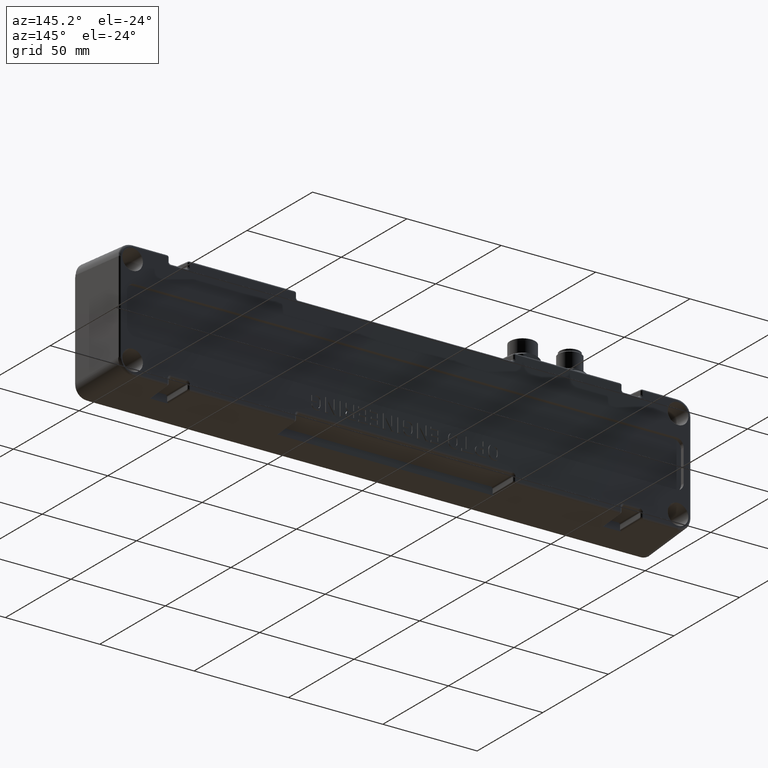
[diagram: clean part render]
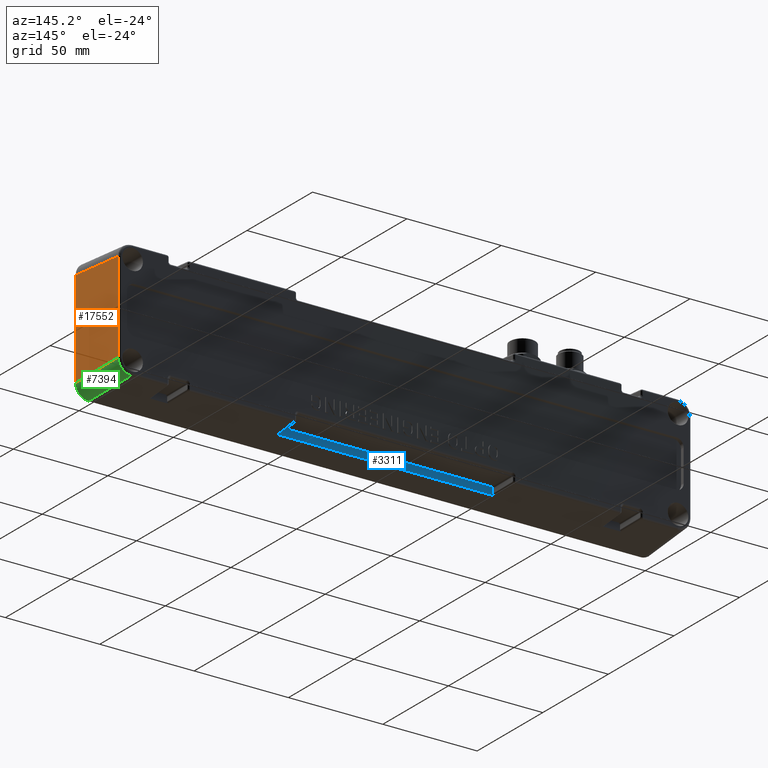
[diagram: same view with three faces highlighted in distinct colors, each labeled with its STEP entity id]
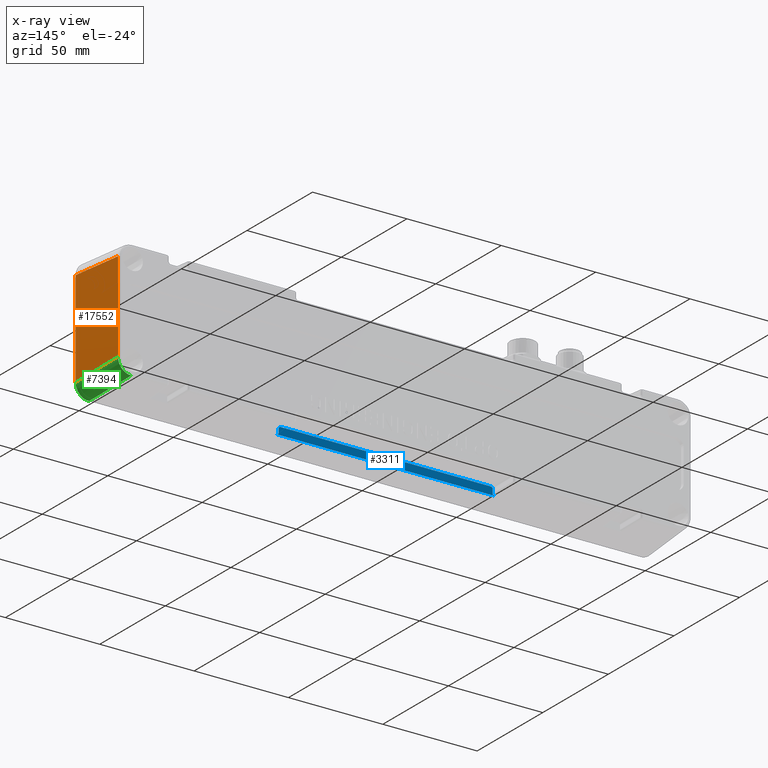
[diagram: x-ray of the same camera — body ghosted, the three highlighted faces saturated]
A machine part, auxiliary view with three faces highlighted in distinct colors.
The next image is the same camera in x-ray (body ghosted, the three faces saturated) — at least one of them is partly hidden behind the body in this view.
Their STEP definitions:

[orange] entity #17552 — the highlighted planar face has unit normal (0.9986, 0.0523, 0).
#685 = CARTESIAN_POINT ( 'NONE',  ( 153.1246411577742776, 2.000001619999999924, -25.63423441449225493 ) ) ;
#2147 = EDGE_CURVE ( 'NONE', #12158, #2442, #9586, .T. ) ;
#2154 = VECTOR ( 'NONE', #4529, 1000.000000000000227 ) ;
#2289 = CARTESIAN_POINT ( 'NONE',  ( 153.1246411577742776, 2.000001619999999924, -1.580489744921034794E-24 ) ) ;
#2442 = VERTEX_POINT ( 'NONE', #3865 ) ;
#3728 = EDGE_LOOP ( 'NONE', ( #20715, #21885, #29457, #31229 ) ) ;
#3865 = CARTESIAN_POINT ( 'NONE',  ( 151.5496649680396786, 32.05233757624294100, 24.05925822475768072 ) ) ;
#4529 = DIRECTION ( 'NONE',  ( -0.05226442768871402550, 0.9972646886342372285, 0.05226442768871403938 ) ) ;
#4786 = DIRECTION ( 'NONE',  ( 0.000000000000000000, -0.000000000000000000, -1.000000000000000000 ) ) ;
#5355 = EDGE_CURVE ( 'NONE', #25607, #28111, #20223, .T. ) ;
#6848 = EDGE_CURVE ( 'NONE', #28111, #12158, #20471, .T. ) ;
#7159 = CARTESIAN_POINT ( 'NONE',  ( 151.5496649680396786, 32.05233757624294100, 31.00000000000000000 ) ) ;
#7850 = PLANE ( 'NONE',  #18231 ) ;
#9359 = DIRECTION ( 'NONE',  ( -0.05233595624294395260, 0.9986295347545739443, 0.000000000000000000 ) ) ;
#9586 = LINE ( 'NONE', #7159, #18177 ) ;
#12158 = VERTEX_POINT ( 'NONE', #16981 ) ;
#12872 = VECTOR ( 'NONE', #4786, 1000.000000000000000 ) ;
#16981 = CARTESIAN_POINT ( 'NONE',  ( 151.5496649680396786, 32.05233757624294100, -24.05925822475767717 ) ) ;
#17552 = ADVANCED_FACE ( 'NONE', ( #20876 ), #7850, .T. ) ;
#18177 = VECTOR ( 'NONE', #20038, 1000.000000000000000 ) ;
#18231 = AXIS2_PLACEMENT_3D ( 'NONE', #32327, #32819, #9359 ) ;
#20038 = DIRECTION ( 'NONE',  ( -0.000000000000000000, -0.000000000000000000, 1.000000000000000000 ) ) ;
#20223 = LINE ( 'NONE', #2289, #12872 ) ;
#20471 = LINE ( 'NONE', #28023, #2154 ) ;
#20715 = ORIENTED_EDGE ( 'NONE', *, *, #6848, .T. ) ;
#20876 = FACE_OUTER_BOUND ( 'NONE', #3728, .T. ) ;
#21271 = EDGE_CURVE ( 'NONE', #2442, #25607, #23397, .T. ) ;
#21885 = ORIENTED_EDGE ( 'NONE', *, *, #2147, .T. ) ;
#22232 = CARTESIAN_POINT ( 'NONE',  ( 153.1246411577742776, 2.000001619999999924, 25.63423441449225848 ) ) ;
#23397 = LINE ( 'NONE', #28204, #31322 ) ;
#25607 = VERTEX_POINT ( 'NONE', #22232 ) ;
#28023 = CARTESIAN_POINT ( 'NONE',  ( 151.3497374232543109, 35.86718238593477537, -23.85933067997229173 ) ) ;
#28111 = VERTEX_POINT ( 'NONE', #685 ) ;
#28204 = CARTESIAN_POINT ( 'NONE',  ( 151.5190947881552859, 32.63565135718558707, 24.02868804487328092 ) ) ;
#29457 = ORIENTED_EDGE ( 'NONE', *, *, #21271, .T. ) ;
#30959 = DIRECTION ( 'NONE',  ( 0.05226442768871402550, -0.9972646886342372285, 0.05226442768871403938 ) ) ;
#31229 = ORIENTED_EDGE ( 'NONE', *, *, #5355, .T. ) ;
#31322 = VECTOR ( 'NONE', #30959, 1000.000000000000227 ) ;
#32327 = CARTESIAN_POINT ( 'NONE',  ( 151.5000000000000000, 33.00000161999999904, 31.00000000000000000 ) ) ;
#32819 = DIRECTION ( 'NONE',  ( 0.9986295347545739443, 0.05233595624294395260, 0.000000000000000000 ) ) ;

[blue] entity #3311 — the highlighted planar face has unit normal (-0, 1, 0).
#323 = VERTEX_POINT ( 'NONE', #22120 ) ;
#1431 = PLANE ( 'NONE',  #10520 ) ;
#1931 = DIRECTION ( 'NONE',  ( -0.000000000000000000, 1.000000000000000000, 0.000000000000000000 ) ) ;
#2775 = CARTESIAN_POINT ( 'NONE',  ( -56.71388331075438316, 18.00000162000000259, -28.78474622400017324 ) ) ;
#3099 = VERTEX_POINT ( 'NONE', #28329 ) ;
#3311 = ADVANCED_FACE ( 'NONE', ( #6160 ), #1431, .T. ) ;
#4739 = CARTESIAN_POINT ( 'NONE',  ( 56.71388331075440448, 18.00000162000000259, -31.37280214694881408 ) ) ;
#5031 = VERTEX_POINT ( 'NONE', #16845 ) ;
#5195 =( BOUNDED_CURVE ( )  B_SPLINE_CURVE ( 3, ( #2775, #14170, #16924, #5945 ),
 .UNSPECIFIED., .F., .T. ) 
 B_SPLINE_CURVE_WITH_KNOTS ( ( 4, 4 ),
 ( 2.357564018062747735, 3.925621289116855372 ),
 .UNSPECIFIED. ) 
 CURVE ( )  GEOMETRIC_REPRESENTATION_ITEM ( )  RATIONAL_B_SPLINE_CURVE ( ( 1.000000000000000000, 0.8053830134673592989, 0.8053830134673592989, 1.000000000000000000 ) ) 
 REPRESENTATION_ITEM ( '' )  );
#5542 = VERTEX_POINT ( 'NONE', #23113 ) ;
#5945 = CARTESIAN_POINT ( 'NONE',  ( -55.71525377599978412, 18.00000162000000259, -27.78611668924560618 ) ) ;
#6160 = FACE_OUTER_BOUND ( 'NONE', #30995, .T. ) ;
#6248 = CARTESIAN_POINT ( 'NONE',  ( 56.71388331075438316, 18.00000162000000259, -28.78474622400018745 ) ) ;
#6962 = CARTESIAN_POINT ( 'NONE',  ( 56.71388331075439027, 18.00000162000000259, -30.78748715449103912 ) ) ;
#7223 = CARTESIAN_POINT ( 'NONE',  ( -57.71251284550896088, 18.00000162000000259, -31.78611668924562039 ) ) ;
#8058 = ORIENTED_EDGE ( 'NONE', *, *, #12156, .T. ) ;
#8358 = ORIENTED_EDGE ( 'NONE', *, *, #11853, .T. ) ;
#8379 = ORIENTED_EDGE ( 'NONE', *, *, #11823, .T. ) ;
#9298 = CARTESIAN_POINT ( 'NONE',  ( -56.71388331075439027, 18.00000162000000259, -30.78748715449103912 ) ) ;
#9647 = CARTESIAN_POINT ( 'NONE',  ( 56.71388331075428368, 18.00000162000000259, 1.967658095843689176E-13 ) ) ;
#9764 = CARTESIAN_POINT ( 'NONE',  ( -151.5000000000000000, 18.00000162000000259, -31.78611668924562039 ) ) ;
#10520 = AXIS2_PLACEMENT_3D ( 'NONE', #11983, #1931, #20203 ) ;
#10705 = ORIENTED_EDGE ( 'NONE', *, *, #28580, .T. ) ;
#10931 = VERTEX_POINT ( 'NONE', #16217 ) ;
#11028 = VERTEX_POINT ( 'NONE', #32978 ) ;
#11823 = EDGE_CURVE ( 'NONE', #323, #5031, #27815, .T. ) ;
#11853 = EDGE_CURVE ( 'NONE', #3099, #5542, #23121, .T. ) ;
#11983 = CARTESIAN_POINT ( 'NONE',  ( 1.118499479934645828E-23, 18.00000162000000259, -1.580489744921034794E-24 ) ) ;
#12156 = EDGE_CURVE ( 'NONE', #10931, #3099, #22812, .T. ) ;
#13386 = ORIENTED_EDGE ( 'NONE', *, *, #28445, .T. ) ;
#13401 = DIRECTION ( 'NONE',  ( 3.469446951953614583E-15, -0.000000000000000000, 1.000000000000000000 ) ) ;
#13645 = CARTESIAN_POINT ( 'NONE',  ( -3.353128957654331868E-15, 18.00000162000000259, -27.78611668924561329 ) ) ;
#13981 = LINE ( 'NONE', #13645, #30107 ) ;
#14170 = CARTESIAN_POINT ( 'NONE',  ( -56.71388331075435474, 18.00000162000000259, -28.19943123154237696 ) ) ;
#14502 = CARTESIAN_POINT ( 'NONE',  ( -56.71388331075438316, 18.00000162000000259, -28.78474622400017324 ) ) ;
#14571 =( BOUNDED_CURVE ( )  B_SPLINE_CURVE ( 3, ( #19289, #32306, #29780, #6248 ),
 .UNSPECIFIED., .F., .T. ) 
 B_SPLINE_CURVE_WITH_KNOTS ( ( 4, 4 ),
 ( 2.357564018062723754, 3.925621289116841606 ),
 .UNSPECIFIED. ) 
 CURVE ( )  GEOMETRIC_REPRESENTATION_ITEM ( )  RATIONAL_B_SPLINE_CURVE ( ( 1.000000000000000000, 0.8053830134673567454, 0.8053830134673567454, 1.000000000000000000 ) ) 
 REPRESENTATION_ITEM ( '' )  );
#14594 = CARTESIAN_POINT ( 'NONE',  ( -56.71388331075439027, 18.00000162000000259, -31.37280214694884606 ) ) ;
#14991 = DIRECTION ( 'NONE',  ( 1.000000000000000000, 0.000000000000000000, -1.206764157201257291E-16 ) ) ;
#15065 = ORIENTED_EDGE ( 'NONE', *, *, #32588, .T. ) ;
#15212 = CARTESIAN_POINT ( 'NONE',  ( 55.71525377599978412, 18.00000162000000259, -27.78611668924561684 ) ) ;
#16217 = CARTESIAN_POINT ( 'NONE',  ( 57.71251284550890404, 18.00000162000000259, -31.78611668924562039 ) ) ;
#16269 = VECTOR ( 'NONE', #27499, 1000.000000000000000 ) ;
#16845 = CARTESIAN_POINT ( 'NONE',  ( 56.71388331075439027, 18.00000162000000259, -30.78748715449103912 ) ) ;
#16924 = CARTESIAN_POINT ( 'NONE',  ( -56.30056876845758751, 18.00000162000000259, -27.78611668924560263 ) ) ;
#16994 =( BOUNDED_CURVE ( )  B_SPLINE_CURVE ( 3, ( #6962, #4739, #30146, #32842 ),
 .UNSPECIFIED., .F., .T. ) 
 B_SPLINE_CURVE_WITH_KNOTS ( ( 4, 4 ),
 ( 2.357564018062733968, 3.925621289116779433 ),
 .UNSPECIFIED. ) 
 CURVE ( )  GEOMETRIC_REPRESENTATION_ITEM ( )  RATIONAL_B_SPLINE_CURVE ( ( 1.000000000000000000, 0.8053830134673738428, 0.8053830134673738428, 1.000000000000000000 ) ) 
 REPRESENTATION_ITEM ( '' )  );
#19034 = VECTOR ( 'NONE', #19896, 1000.000000000000000 ) ;
#19289 = CARTESIAN_POINT ( 'NONE',  ( 55.71525377599978412, 18.00000162000000259, -27.78611668924561684 ) ) ;
#19706 = ORIENTED_EDGE ( 'NONE', *, *, #22456, .T. ) ;
#19896 = DIRECTION ( 'NONE',  ( -1.000000000000000000, -0.000000000000000000, -0.000000000000000000 ) ) ;
#20203 = DIRECTION ( 'NONE',  ( 0.000000000000000000, -0.000000000000000000, 1.000000000000000000 ) ) ;
#21708 = VERTEX_POINT ( 'NONE', #14502 ) ;
#22120 = CARTESIAN_POINT ( 'NONE',  ( 56.71388331075438316, 18.00000162000000259, -28.78474622400018745 ) ) ;
#22347 = CARTESIAN_POINT ( 'NONE',  ( -57.12719785305115039, 18.00000162000000259, -31.78611668924561684 ) ) ;
#22453 = ORIENTED_EDGE ( 'NONE', *, *, #28885, .T. ) ;
#22456 = EDGE_CURVE ( 'NONE', #5542, #21708, #26935, .T. ) ;
#22812 = LINE ( 'NONE', #9764, #19034 ) ;
#23113 = CARTESIAN_POINT ( 'NONE',  ( -56.71388331075439027, 18.00000162000000259, -30.78748715449103912 ) ) ;
#23121 =( BOUNDED_CURVE ( )  B_SPLINE_CURVE ( 3, ( #7223, #22347, #14594, #9298 ),
 .UNSPECIFIED., .F., .T. ) 
 B_SPLINE_CURVE_WITH_KNOTS ( ( 4, 4 ),
 ( 2.357564018062737521, 3.925621289116852264 ),
 .UNSPECIFIED. ) 
 CURVE ( )  GEOMETRIC_REPRESENTATION_ITEM ( )  RATIONAL_B_SPLINE_CURVE ( ( 1.000000000000000000, 0.8053830134673575225, 0.8053830134673575225, 1.000000000000000000 ) ) 
 REPRESENTATION_ITEM ( '' )  );
#24031 = CARTESIAN_POINT ( 'NONE',  ( -56.71388331075428368, 18.00000162000000259, 1.967658095843689176E-13 ) ) ;
#24283 = VECTOR ( 'NONE', #13401, 1000.000000000000000 ) ;
#26361 = VERTEX_POINT ( 'NONE', #15212 ) ;
#26935 = LINE ( 'NONE', #24031, #24283 ) ;
#27499 = DIRECTION ( 'NONE',  ( 3.469446951953614583E-15, 0.000000000000000000, -1.000000000000000000 ) ) ;
#27815 = LINE ( 'NONE', #9647, #16269 ) ;
#28329 = CARTESIAN_POINT ( 'NONE',  ( -57.71251284550896088, 18.00000162000000259, -31.78611668924562039 ) ) ;
#28445 = EDGE_CURVE ( 'NONE', #21708, #11028, #5195, .T. ) ;
#28580 = EDGE_CURVE ( 'NONE', #5031, #10931, #16994, .T. ) ;
#28885 = EDGE_CURVE ( 'NONE', #26361, #323, #14571, .T. ) ;
#29780 = CARTESIAN_POINT ( 'NONE',  ( 56.71388331075437605, 18.00000162000000259, -28.19943123154238052 ) ) ;
#30107 = VECTOR ( 'NONE', #14991, 1000.000000000000000 ) ;
#30146 = CARTESIAN_POINT ( 'NONE',  ( 57.12719785305114328, 18.00000162000000259, -31.78611668924557776 ) ) ;
#30995 = EDGE_LOOP ( 'NONE', ( #15065, #22453, #8379, #10705, #8058, #8358, #19706, #13386 ) ) ;
#32306 = CARTESIAN_POINT ( 'NONE',  ( 56.30056876845758751, 18.00000162000000259, -27.78611668924560263 ) ) ;
#32588 = EDGE_CURVE ( 'NONE', #11028, #26361, #13981, .T. ) ;
#32842 = CARTESIAN_POINT ( 'NONE',  ( 57.71251284550890404, 18.00000162000000259, -31.78611668924562039 ) ) ;
#32978 = CARTESIAN_POINT ( 'NONE',  ( -55.71525377599978412, 18.00000162000000259, -27.78611668924560618 ) ) ;

[green] entity #7394 — the highlighted cylindrical surface (edge-blend (fillet) strip) has radius 7 mm, axis along (0.0523, -0.9973, -0.0523).
#685 = CARTESIAN_POINT ( 'NONE',  ( 153.1246411577742776, 2.000001619999999924, -25.63423441449225493 ) ) ;
#933 = ORIENTED_EDGE ( 'NONE', *, *, #6848, .F. ) ;
#1880 = VERTEX_POINT ( 'NONE', #2369 ) ;
#2084 = CARTESIAN_POINT ( 'NONE',  ( 150.2314393616967720, 2.000001619999999924, -32.62464115777432028 ) ) ;
#2101 = DIRECTION ( 'NONE',  ( 0.05226442768871403938, -0.9972646886342372285, -0.05226442768871402550 ) ) ;
#2154 = VECTOR ( 'NONE', #4529, 1000.000000000000227 ) ;
#2369 = CARTESIAN_POINT ( 'NONE',  ( 146.1342344144921412, 2.000001619999999924, -32.62464115777427764 ) ) ;
#4454 = LINE ( 'NONE', #14903, #26858 ) ;
#4529 = DIRECTION ( 'NONE',  ( -0.05226442768871402550, 0.9972646886342372285, 0.05226442768871403938 ) ) ;
#4637 = CARTESIAN_POINT ( 'NONE',  ( 151.5480661389306078, 32.08284505301261191, -28.15486434285323369 ) ) ;
#5977 = AXIS2_PLACEMENT_3D ( 'NONE', #28145, #28402, #25825 ) ;
#6848 = EDGE_CURVE ( 'NONE', #28111, #12158, #20471, .T. ) ;
#7394 = ADVANCED_FACE ( 'NONE', ( #16900 ), #22892, .T. ) ;
#8819 = EDGE_CURVE ( 'NONE', #1880, #28111, #12581, .T. ) ;
#10277 = CARTESIAN_POINT ( 'NONE',  ( 153.1246411577742776, 2.000001619999999924, -25.63423441449225493 ) ) ;
#12127 = CARTESIAN_POINT ( 'NONE',  ( 144.5592582247576559, 32.05233757624294100, -31.04966496803969633 ) ) ;
#12158 = VERTEX_POINT ( 'NONE', #16981 ) ;
#12581 =( BOUNDED_CURVE ( )  B_SPLINE_CURVE ( 3, ( #15591, #2084, #31210, #10277 ),
 .UNSPECIFIED., .F., .T. ) 
 B_SPLINE_CURVE_WITH_KNOTS ( ( 4, 4 ),
 ( 5.499156671652523976, 7.067213942706641383 ),
 .UNSPECIFIED. ) 
 CURVE ( )  GEOMETRIC_REPRESENTATION_ITEM ( )  RATIONAL_B_SPLINE_CURVE ( ( 1.000000000000000000, 0.8053830134673569674, 0.8053830134673569674, 1.000000000000000000 ) ) 
 REPRESENTATION_ITEM ( '' )  );
#12871 = CARTESIAN_POINT ( 'NONE',  ( 144.5592582247576559, 32.05233757624294100, -31.04966496803969633 ) ) ;
#14903 = CARTESIAN_POINT ( 'NONE',  ( 143.7010222131797264, 48.42845622349209123, -30.19142895646176328 ) ) ;
#15591 = CARTESIAN_POINT ( 'NONE',  ( 146.1342344144921412, 2.000001619999999924, -32.62464115777427764 ) ) ;
#16900 = FACE_OUTER_BOUND ( 'NONE', #29953, .T. ) ;
#16981 = CARTESIAN_POINT ( 'NONE',  ( 151.5496649680396786, 32.05233757624294100, -24.05925822475767717 ) ) ;
#20471 = LINE ( 'NONE', #28023, #2154 ) ;
#20817 = EDGE_CURVE ( 'NONE', #32312, #1880, #4454, .T. ) ;
#22717 =( BOUNDED_CURVE ( )  B_SPLINE_CURVE ( 3, ( #12871, #26250, #4637, #25586 ),
 .UNSPECIFIED., .F., .T. ) 
 B_SPLINE_CURVE_WITH_KNOTS ( ( 4, 4 ),
 ( 5.499156671652538186, 7.067213942706638719 ),
 .UNSPECIFIED. ) 
 CURVE ( )  GEOMETRIC_REPRESENTATION_ITEM ( )  RATIONAL_B_SPLINE_CURVE ( ( 1.000000000000000000, 0.8053830134673609642, 0.8053830134673609642, 1.000000000000000000 ) ) 
 REPRESENTATION_ITEM ( '' )  );
#22892 = CYLINDRICAL_SURFACE ( 'NONE', #5977, 6.999999999999999112 ) ;
#25586 = CARTESIAN_POINT ( 'NONE',  ( 151.5496649680396786, 32.05233757624294100, -24.05925822475767717 ) ) ;
#25825 = DIRECTION ( 'NONE',  ( 0.000000000000000000, 0.05233595624294354320, -0.9986295347545739443 ) ) ;
#26250 = CARTESIAN_POINT ( 'NONE',  ( 148.6548643428532159, 32.08284505301261191, -31.04806613893063982 ) ) ;
#26629 = ORIENTED_EDGE ( 'NONE', *, *, #8819, .F. ) ;
#26858 = VECTOR ( 'NONE', #2101, 1000.000000000000227 ) ;
#28023 = CARTESIAN_POINT ( 'NONE',  ( 151.3497374232543109, 35.86718238593477537, -23.85933067997229173 ) ) ;
#28111 = VERTEX_POINT ( 'NONE', #685 ) ;
#28145 = CARTESIAN_POINT ( 'NONE',  ( 143.7010222131796695, 48.06210452979148329, -23.20102221317974767 ) ) ;
#28402 = DIRECTION ( 'NONE',  ( 0.05226442768871403938, -0.9972646886342373396, -0.05226442768871403938 ) ) ;
#29086 = EDGE_CURVE ( 'NONE', #32312, #12158, #22717, .T. ) ;
#29953 = EDGE_LOOP ( 'NONE', ( #33551, #32392, #933, #26629 ) ) ;
#31210 = CARTESIAN_POINT ( 'NONE',  ( 153.1246411577742208, 2.000001619999999924, -29.73143936169688928 ) ) ;
#32312 = VERTEX_POINT ( 'NONE', #12127 ) ;
#32392 = ORIENTED_EDGE ( 'NONE', *, *, #29086, .T. ) ;
#33551 = ORIENTED_EDGE ( 'NONE', *, *, #20817, .F. ) ;